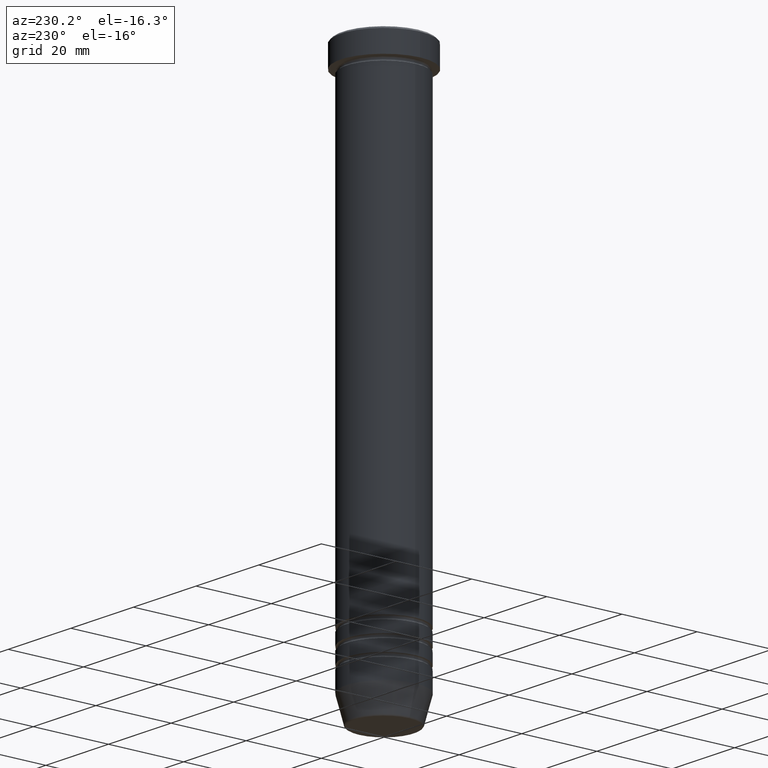
[diagram: clean part render]
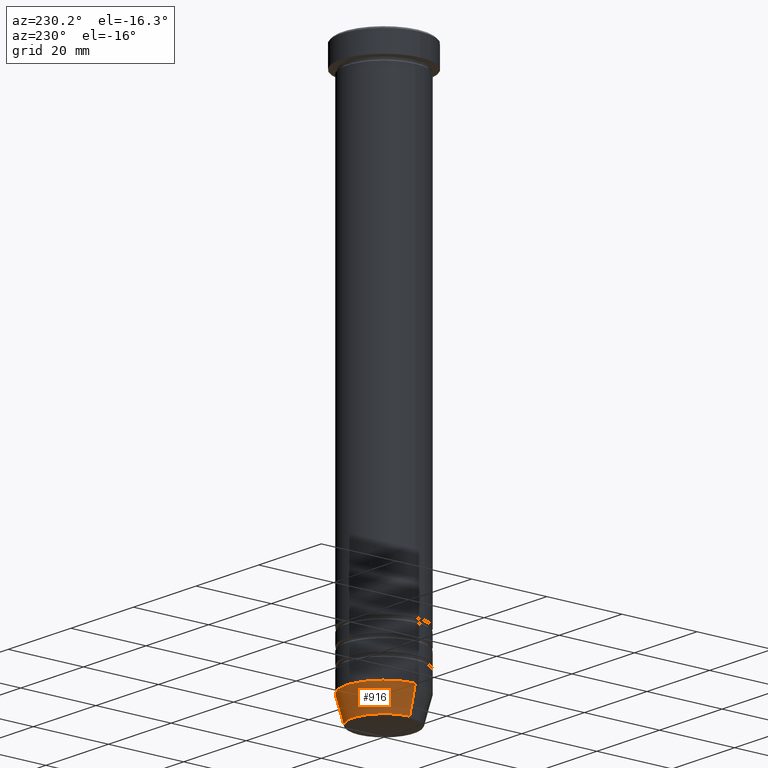
[diagram: same view with one face highlighted and labeled with its STEP entity id]
A machine part, auxiliary view. The second image highlights one B-rep face of the part: STEP entity #916.
In plain terms, the highlighted conical surface has half-angle 15 deg.
Its self-contained STEP definition (entity closure, byte-faithful):
#56 = CARTESIAN_POINT ( 'NONE',  ( 0.000000000000000000, 0.000000000000000000, -146.0000000000000284 ) ) ;
#89 = EDGE_LOOP ( 'NONE', ( #415, #230, #534, #1001 ) ) ;
#121 = CARTESIAN_POINT ( 'NONE',  ( 0.000000000000000000, 0.000000000000000000, -139.0000000000000000 ) ) ;
#149 = FACE_OUTER_BOUND ( 'NONE', #89, .T. ) ;
#155 = CONICAL_SURFACE ( 'NONE', #301, 8.124355652982135467, 0.2617993877991500740 ) ;
#230 = ORIENTED_EDGE ( 'NONE', *, *, #345, .T. ) ;
#251 = VECTOR ( 'NONE', #985, 1000.000000000000000 ) ;
#301 = AXIS2_PLACEMENT_3D ( 'NONE', #56, #508, #774 ) ;
#330 = CARTESIAN_POINT ( 'NONE',  ( 0.000000000000000000, 0.000000000000000000, -145.6294095225512706 ) ) ;
#345 = EDGE_CURVE ( 'NONE', #476, #690, #481, .T. ) ;
#353 = VERTEX_POINT ( 'NONE', #855 ) ;
#367 = DIRECTION ( 'NONE',  ( -0.000000000000000000, -0.000000000000000000, 1.000000000000000000 ) ) ;
#389 = VECTOR ( 'NONE', #578, 1000.000000000000000 ) ;
#415 = ORIENTED_EDGE ( 'NONE', *, *, #955, .T. ) ;
#461 = CARTESIAN_POINT ( 'NONE',  ( 10.00000000000000000, 0.000000000000000000, -139.0000000000000000 ) ) ;
#475 = CARTESIAN_POINT ( 'NONE',  ( -8.124355652982135467, 9.949466145559276583E-16, -146.0000000000000284 ) ) ;
#476 = VERTEX_POINT ( 'NONE', #961 ) ;
#481 = LINE ( 'NONE', #475, #389 ) ;
#508 = DIRECTION ( 'NONE',  ( -0.000000000000000000, -0.000000000000000000, 1.000000000000000000 ) ) ;
#534 = ORIENTED_EDGE ( 'NONE', *, *, #1035, .F. ) ;
#546 = CIRCLE ( 'NONE', #603, 8.223655072137189492 ) ;
#556 = DIRECTION ( 'NONE',  ( 1.000000000000000000, 0.000000000000000000, 0.000000000000000000 ) ) ;
#567 = CIRCLE ( 'NONE', #744, 10.00000000000000000 ) ;
#578 = DIRECTION ( 'NONE',  ( -0.2588190451025213501, 3.169619151431772337E-17, 0.9659258262890680902 ) ) ;
#603 = AXIS2_PLACEMENT_3D ( 'NONE', #330, #1046, #966 ) ;
#690 = VERTEX_POINT ( 'NONE', #1089 ) ;
#744 = AXIS2_PLACEMENT_3D ( 'NONE', #121, #367, #556 ) ;
#774 = DIRECTION ( 'NONE',  ( 1.000000000000000000, 0.000000000000000000, 0.000000000000000000 ) ) ;
#855 = CARTESIAN_POINT ( 'NONE',  ( 8.223655072137189492, 0.000000000000000000, -145.6294095225512706 ) ) ;
#875 = LINE ( 'NONE', #1036, #251 ) ;
#910 = EDGE_CURVE ( 'NONE', #353, #1072, #875, .T. ) ;
#916 = ADVANCED_FACE ( 'NONE', ( #149 ), #155, .T. ) ;
#955 = EDGE_CURVE ( 'NONE', #353, #476, #546, .T. ) ;
#961 = CARTESIAN_POINT ( 'NONE',  ( -8.223655072137189492, 1.115877042642911856E-15, -145.6294095225512706 ) ) ;
#966 = DIRECTION ( 'NONE',  ( -1.000000000000000000, 0.000000000000000000, 0.000000000000000000 ) ) ;
#985 = DIRECTION ( 'NONE',  ( 0.2588190451025213501, 0.000000000000000000, 0.9659258262890680902 ) ) ;
#1001 = ORIENTED_EDGE ( 'NONE', *, *, #910, .F. ) ;
#1035 = EDGE_CURVE ( 'NONE', #1072, #690, #567, .T. ) ;
#1036 = CARTESIAN_POINT ( 'NONE',  ( 8.124355652982135467, 0.000000000000000000, -146.0000000000000284 ) ) ;
#1046 = DIRECTION ( 'NONE',  ( -0.000000000000000000, -0.000000000000000000, 1.000000000000000000 ) ) ;
#1072 = VERTEX_POINT ( 'NONE', #461 ) ;
#1089 = CARTESIAN_POINT ( 'NONE',  ( -10.00000000000000000, 1.224646799147353256E-15, -139.0000000000000000 ) ) ;